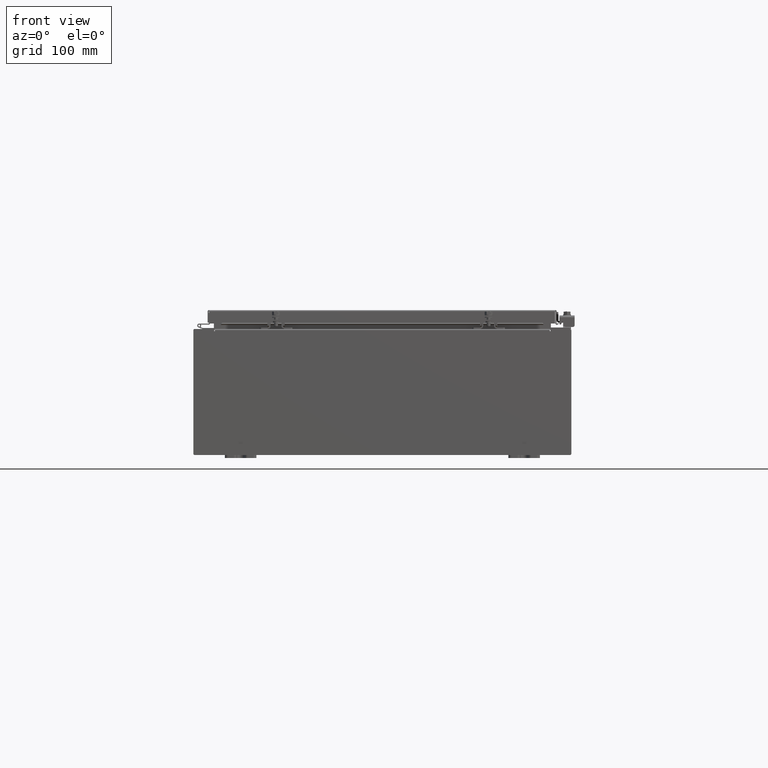
[diagram: clean part render]
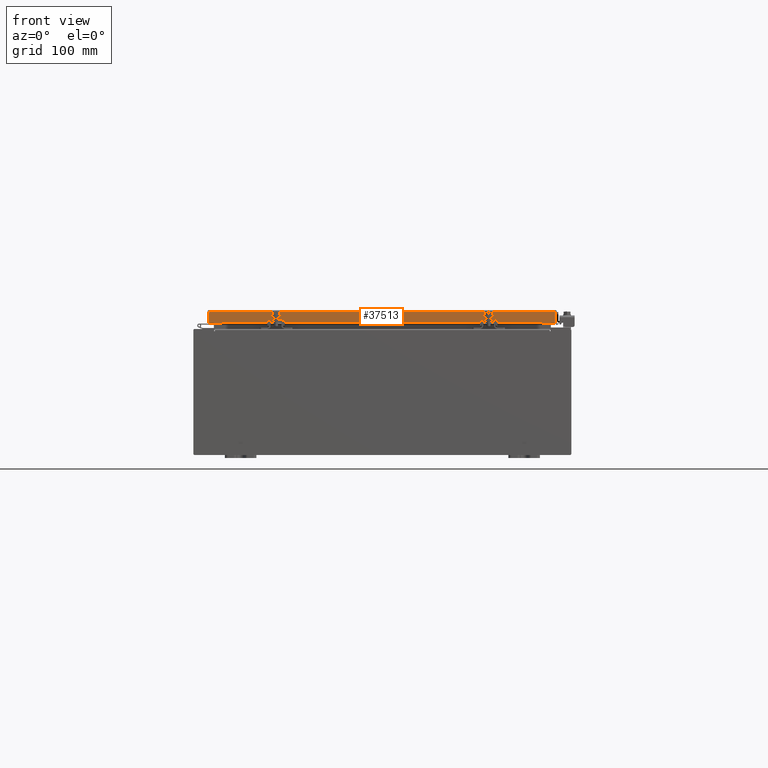
[diagram: same view with one face highlighted and labeled with its STEP entity id]
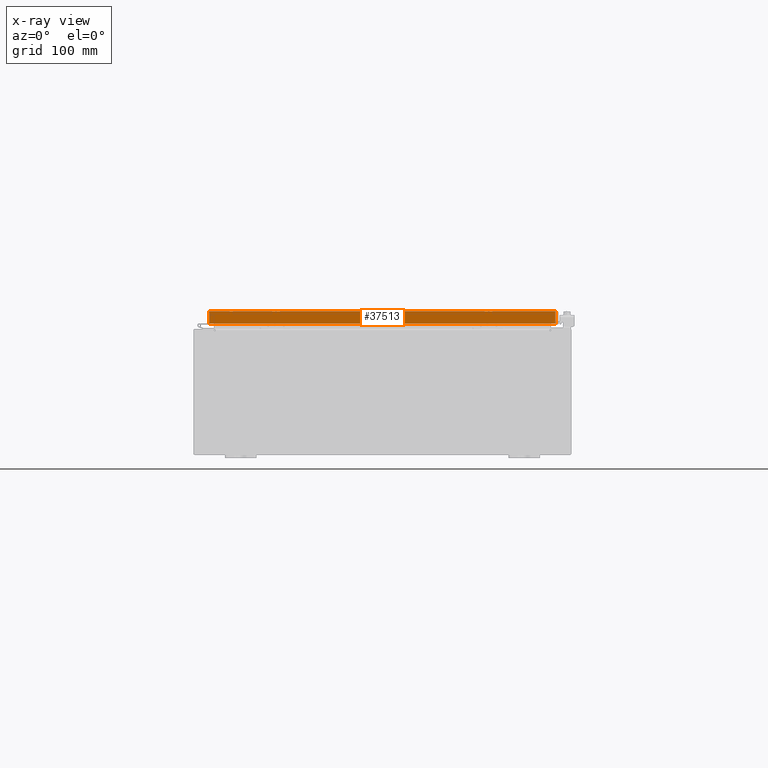
[diagram: x-ray of the same camera — body ghosted, the highlighted face saturated]
A machine part, front view. The second image highlights one B-rep face of the part: STEP entity #37513.
The next image is the same camera in x-ray: the body ghosted, the highlighted face saturated — about 0% of this face is hidden behind the body in this view.
In plain terms, the highlighted planar face has unit normal (-0, 1, -0).
Its self-contained STEP definition (entity closure, byte-faithful):
#527 = LINE ( 'NONE', #31412, #33428 ) ;
#1124 = CARTESIAN_POINT ( 'NONE',  ( -10.98915786437627200, -17.09399999999999800, -0.8499999999999966500 ) ) ;
#2728 = ORIENTED_EDGE ( 'NONE', *, *, #6400, .F. ) ;
#3674 = CARTESIAN_POINT ( 'NONE',  ( 11.07799999999999600, -17.09399999999999800, -0.8499999999999999800 ) ) ;
#4590 = DIRECTION ( 'NONE',  ( -1.000000000000000000, 4.379057701015053300E-047, 1.233005954894504400E-016 ) ) ;
#6394 = EDGE_LOOP ( 'NONE', ( #2728, #34951, #25193, #18584, #17395, #26576 ) ) ;
#6400 = EDGE_CURVE ( 'NONE', #38978, #27248, #527, .T. ) ;
#6803 = CARTESIAN_POINT ( 'NONE',  ( 10.23915786437626200, -17.09399999999999400, -0.8499999999999999800 ) ) ;
#8244 = EDGE_CURVE ( 'NONE', #38978, #12533, #22100, .T. ) ;
#9845 = CARTESIAN_POINT ( 'NONE',  ( 10.98915786437626500, -17.09399999999999800, -0.8499999999999999800 ) ) ;
#10233 = VERTEX_POINT ( 'NONE', #9845 ) ;
#10337 = CARTESIAN_POINT ( 'NONE',  ( 10.98915786437626700, -17.09399999999999800, -0.08769999999999918100 ) ) ;
#11598 = LINE ( 'NONE', #15358, #37798 ) ;
#11735 = DIRECTION ( 'NONE',  ( 1.000000000000000000, 6.951393977153911800E-032, -9.864047639156036200E-017 ) ) ;
#12533 = VERTEX_POINT ( 'NONE', #1124 ) ;
#12690 = EDGE_CURVE ( 'NONE', #27248, #10233, #11598, .T. ) ;
#12951 = VERTEX_POINT ( 'NONE', #26551 ) ;
#13002 = EDGE_CURVE ( 'NONE', #10233, #12951, #27500, .T. ) ;
#15004 = DIRECTION ( 'NONE',  ( -3.475696988576954900E-031, 1.000000000000000000, -2.818880942772360500E-015 ) ) ;
#15358 = CARTESIAN_POINT ( 'NONE',  ( 10.98915786437626500, -17.09399999999999800, -0.07470000000000015500 ) ) ;
#16743 = DIRECTION ( 'NONE',  ( -1.000000000000000000, 0.0000000000000000000, 0.0000000000000000000 ) ) ;
#17395 = ORIENTED_EDGE ( 'NONE', *, *, #13002, .F. ) ;
#18584 = ORIENTED_EDGE ( 'NONE', *, *, #30128, .F. ) ;
#18777 = VECTOR ( 'NONE', #39944, 39.37007874015748100 ) ;
#21925 = VECTOR ( 'NONE', #16743, 39.37007874015748100 ) ;
#22100 = LINE ( 'NONE', #29098, #29817 ) ;
#24709 = VERTEX_POINT ( 'NONE', #40471 ) ;
#25193 = ORIENTED_EDGE ( 'NONE', *, *, #35404, .F. ) ;
#26551 = CARTESIAN_POINT ( 'NONE',  ( 10.23915786437626200, -17.09399999999999400, -0.8499999999999999800 ) ) ;
#26576 = ORIENTED_EDGE ( 'NONE', *, *, #12690, .F. ) ;
#27248 = VERTEX_POINT ( 'NONE', #10337 ) ;
#27500 = LINE ( 'NONE', #3674, #18777 ) ;
#27518 = FACE_OUTER_BOUND ( 'NONE', #6394, .T. ) ;
#27595 = CARTESIAN_POINT ( 'NONE',  ( 11.07799999999999600, -17.09399999999999800, -0.8499999999999999800 ) ) ;
#29098 = CARTESIAN_POINT ( 'NONE',  ( -10.98915786437626900, -17.09399999999999800, 4.808052468849102900E-014 ) ) ;
#29817 = VECTOR ( 'NONE', #32388, 39.37007874015748100 ) ;
#30128 = EDGE_CURVE ( 'NONE', #12951, #24709, #30670, .T. ) ;
#30320 = AXIS2_PLACEMENT_3D ( 'NONE', #37844, #15004, #37973 ) ;
#30670 = LINE ( 'NONE', #6803, #21925 ) ;
#31412 = CARTESIAN_POINT ( 'NONE',  ( 11.07799999999999600, -17.09399999999999800, -0.08770000000000026400 ) ) ;
#32388 = DIRECTION ( 'NONE',  ( 0.0000000000000000000, -2.818880942772360500E-015, -1.000000000000000000 ) ) ;
#32847 = CARTESIAN_POINT ( 'NONE',  ( -10.98915786437627200, -17.09399999999999800, -0.08769999999999808500 ) ) ;
#33428 = VECTOR ( 'NONE', #11735, 39.37007874015748100 ) ;
#33730 = VECTOR ( 'NONE', #4590, 39.37007874015748100 ) ;
#34704 = PLANE ( 'NONE',  #30320 ) ;
#34951 = ORIENTED_EDGE ( 'NONE', *, *, #8244, .T. ) ;
#35404 = EDGE_CURVE ( 'NONE', #24709, #12533, #42511, .T. ) ;
#37513 = ADVANCED_FACE ( 'NONE', ( #27518 ), #34704, .F. ) ;
#37798 = VECTOR ( 'NONE', #38332, 39.37007874015748100 ) ;
#37844 = CARTESIAN_POINT ( 'NONE',  ( 0.0000000000000000000, -17.09399999999999800, 4.808052468849102900E-014 ) ) ;
#37973 = DIRECTION ( 'NONE',  ( 0.0000000000000000000, 2.818880942772360500E-015, 1.000000000000000000 ) ) ;
#38332 = DIRECTION ( 'NONE',  ( -0.0000000000000000000, -2.818880942772360500E-015, -1.000000000000000000 ) ) ;
#38978 = VERTEX_POINT ( 'NONE', #32847 ) ;
#39944 = DIRECTION ( 'NONE',  ( -1.000000000000000000, 4.379057701015053300E-047, 1.233005954894504400E-016 ) ) ;
#40471 = CARTESIAN_POINT ( 'NONE',  ( -10.23915786437627100, -17.09399999999999400, -0.8499999999999999800 ) ) ;
#42511 = LINE ( 'NONE', #27595, #33730 ) ;